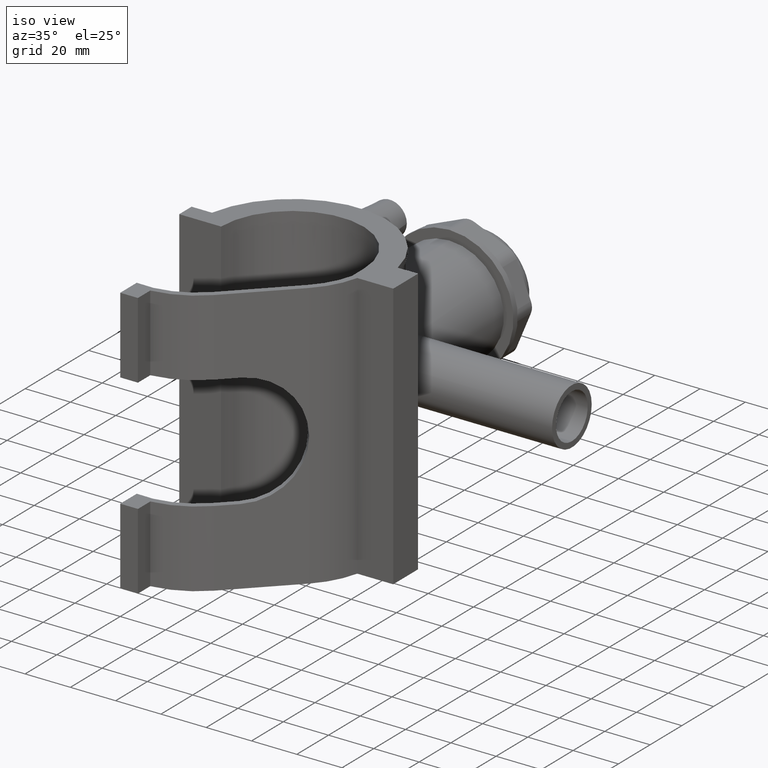
[diagram: clean part render]
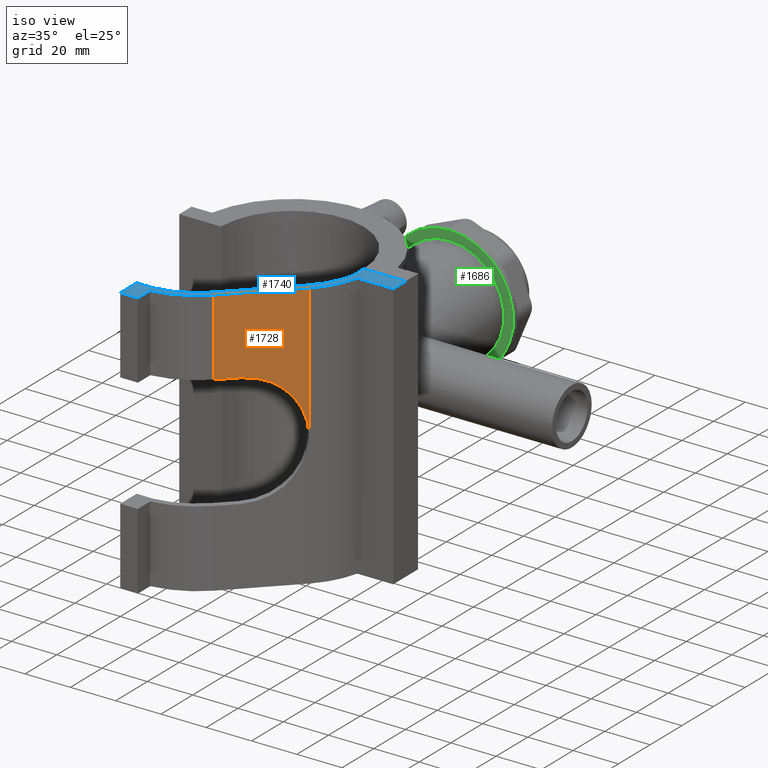
[diagram: same view with three faces highlighted in distinct colors, each labeled with its STEP entity id]
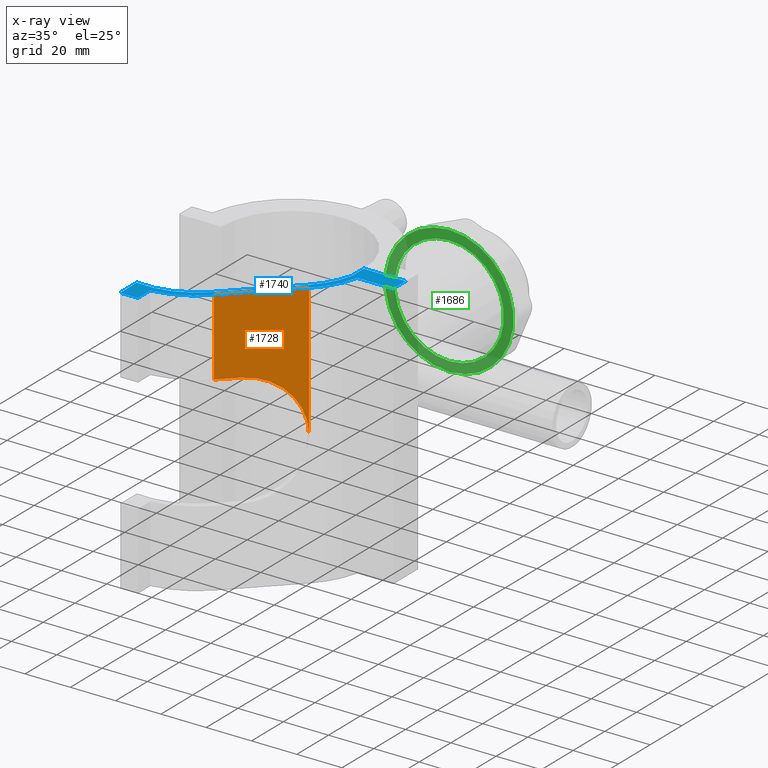
[diagram: x-ray of the same camera — body ghosted, the three highlighted faces saturated]
A machine part, iso view with three faces highlighted in distinct colors.
The next image is the same camera in x-ray (body ghosted, the three faces saturated) — at least one of them is partly hidden behind the body in this view.
Their STEP definitions:

[orange] entity #1728 — the highlighted planar face has unit normal (0.7071, -0.7071, 0).
#123=LINE('',#3400,#266);
#150=LINE('',#3474,#293);
#151=LINE('',#3476,#294);
#152=LINE('',#3477,#295);
#266=VECTOR('',#2292,9.77511653963596);
#293=VECTOR('',#2361,59.);
#294=VECTOR('',#2362,34.975116539636);
#295=VECTOR('',#2363,33.8);
#368=PLANE('',#1902);
#442=CIRCLE('',#1891,25.2);
#567=FACE_OUTER_BOUND('',#697,.T.);
#697=EDGE_LOOP('',(#1529,#1530,#1531,#1532,#1533));
#851=VERTEX_POINT('',#3397);
#852=VERTEX_POINT('',#3399);
#866=VERTEX_POINT('',#3431);
#878=VERTEX_POINT('',#3473);
#879=VERTEX_POINT('',#3475);
#1066=EDGE_CURVE('',#852,#851,#123,.T.);
#1083=EDGE_CURVE('',#851,#866,#442,.T.);
#1103=EDGE_CURVE('',#878,#866,#150,.T.);
#1104=EDGE_CURVE('',#879,#878,#151,.T.);
#1105=EDGE_CURVE('',#879,#852,#152,.T.);
#1529=ORIENTED_EDGE('',*,*,#1066,.T.);
#1530=ORIENTED_EDGE('',*,*,#1083,.T.);
#1531=ORIENTED_EDGE('',*,*,#1103,.F.);
#1532=ORIENTED_EDGE('',*,*,#1104,.F.);
#1533=ORIENTED_EDGE('',*,*,#1105,.T.);
#1728=ADVANCED_FACE('',(#567),#368,.T.);
#1891=AXIS2_PLACEMENT_3D('',#3433,#2320,#2321);
#1902=AXIS2_PLACEMENT_3D('',#3472,#2359,#2360);
#2292=DIRECTION('',(0.707106782026161,0.707106780346934,-2.20282346155785E-16));
#2320=DIRECTION('center_axis',(-0.707106780346934,0.707106782026161,0.));
#2321=DIRECTION('ref_axis',(0.707106782026161,0.707106780346934,0.));
#2359=DIRECTION('center_axis',(0.707106780346934,-0.707106782026161,0.));
#2360=DIRECTION('ref_axis',(-0.707106782026161,-0.707106780346934,0.));
#2361=DIRECTION('',(0.,0.,-1.));
#2362=DIRECTION('',(0.707106782026161,0.707106780346934,0.));
#2363=DIRECTION('',(0.,0.,-1.));
#3397=CARTESIAN_POINT('',(6.91205108281033,-42.5502329133435,25.2));
#3399=CARTESIAN_POINT('',(-1.1746235539789E-7,-49.4622840972015,25.2));
#3400=CARTESIAN_POINT('',(-19.8165852777786,-69.2788692104576,25.2));
#3431=CARTESIAN_POINT('',(24.7311419898696,-24.7311420486008,0.));
#3433=CARTESIAN_POINT('Origin',(6.91205108281032,-42.5502329133435,0.));
#3472=CARTESIAN_POINT('Origin',(24.7311419898696,-24.7311420486008,59.));
#3473=CARTESIAN_POINT('',(24.7311419898696,-24.7311420486008,59.));
#3474=CARTESIAN_POINT('',(24.7311419898696,-24.7311420486008,59.));
#3475=CARTESIAN_POINT('',(-1.1746235539789E-7,-49.4622840972015,59.));
#3476=CARTESIAN_POINT('',(-1.1746235539789E-7,-49.4622840972015,59.));
#3477=CARTESIAN_POINT('',(-1.1746235539789E-7,-49.4622840972015,59.));

[blue] entity #1740 — the highlighted planar face has unit normal (0, 0, 1).
#142=LINE('',#3457,#285);
#146=LINE('',#3465,#289);
#151=LINE('',#3476,#294);
#156=LINE('',#3485,#299);
#159=LINE('',#3497,#302);
#163=LINE('',#3504,#306);
#165=LINE('',#3511,#308);
#169=LINE('',#3523,#312);
#171=LINE('',#3526,#314);
#285=VECTOR('',#2345,10.4451981771696);
#289=VECTOR('',#2353,7.82499999999998);
#294=VECTOR('',#2362,34.975116539636);
#299=VECTOR('',#2371,7.76729281260671);
#302=VECTOR('',#2384,18.5000396825647);
#306=VECTOR('',#2390,7.52662064023158);
#308=VECTOR('',#2400,34.975116539636);
#312=VECTOR('',#2412,15.9000271825451);
#314=VECTOR('',#2416,7.82499999999999);
#376=PLANE('',#1920);
#444=CIRCLE('',#1896,32.375103956558);
#446=CIRCLE('',#1908,34.9751164565775);
#448=CIRCLE('',#1913,32.375103956558);
#450=CIRCLE('',#1917,34.9751164565775);
#579=FACE_OUTER_BOUND('',#709,.T.);
#709=EDGE_LOOP('',(#1581,#1582,#1583,#1584,#1585,#1586,#1587,#1588,#1589,
#1590,#1591,#1592,#1593));
#870=VERTEX_POINT('',#3445);
#871=VERTEX_POINT('',#3447);
#873=VERTEX_POINT('',#3455);
#875=VERTEX_POINT('',#3463);
#878=VERTEX_POINT('',#3473);
#879=VERTEX_POINT('',#3475);
#881=VERTEX_POINT('',#3483);
#884=VERTEX_POINT('',#3494);
#885=VERTEX_POINT('',#3496);
#887=VERTEX_POINT('',#3502);
#888=VERTEX_POINT('',#3507);
#890=VERTEX_POINT('',#3515);
#892=VERTEX_POINT('',#3521);
#1090=EDGE_CURVE('',#871,#870,#444,.T.);
#1095=EDGE_CURVE('',#870,#873,#142,.T.);
#1099=EDGE_CURVE('',#873,#875,#146,.T.);
#1104=EDGE_CURVE('',#879,#878,#151,.T.);
#1109=EDGE_CURVE('',#875,#881,#156,.T.);
#1111=EDGE_CURVE('',#881,#879,#446,.T.);
#1114=EDGE_CURVE('',#885,#884,#159,.T.);
#1118=EDGE_CURVE('',#884,#887,#163,.T.);
#1121=EDGE_CURVE('',#887,#888,#448,.T.);
#1122=EDGE_CURVE('',#888,#871,#165,.T.);
#1125=EDGE_CURVE('',#878,#890,#450,.T.);
#1128=EDGE_CURVE('',#890,#892,#169,.T.);
#1130=EDGE_CURVE('',#892,#885,#171,.T.);
#1581=ORIENTED_EDGE('',*,*,#1095,.T.);
#1582=ORIENTED_EDGE('',*,*,#1099,.T.);
#1583=ORIENTED_EDGE('',*,*,#1109,.T.);
#1584=ORIENTED_EDGE('',*,*,#1111,.T.);
#1585=ORIENTED_EDGE('',*,*,#1104,.T.);
#1586=ORIENTED_EDGE('',*,*,#1125,.T.);
#1587=ORIENTED_EDGE('',*,*,#1128,.T.);
#1588=ORIENTED_EDGE('',*,*,#1130,.T.);
#1589=ORIENTED_EDGE('',*,*,#1114,.T.);
#1590=ORIENTED_EDGE('',*,*,#1118,.T.);
#1591=ORIENTED_EDGE('',*,*,#1121,.T.);
#1592=ORIENTED_EDGE('',*,*,#1122,.T.);
#1593=ORIENTED_EDGE('',*,*,#1090,.T.);
#1740=ADVANCED_FACE('',(#579),#376,.T.);
#1896=AXIS2_PLACEMENT_3D('',#3448,#2335,#2336);
#1908=AXIS2_PLACEMENT_3D('',#3489,#2378,#2379);
#1913=AXIS2_PLACEMENT_3D('',#3509,#2396,#2397);
#1917=AXIS2_PLACEMENT_3D('',#3517,#2406,#2407);
#1920=AXIS2_PLACEMENT_3D('',#3527,#2417,#2418);
#2335=DIRECTION('center_axis',(0.,0.,-1.));
#2336=DIRECTION('ref_axis',(0.128765786070608,0.991675033636331,0.));
#2345=DIRECTION('',(5.67526146773244E-16,-1.,0.));
#2353=DIRECTION('',(1.,0.,0.));
#2362=DIRECTION('',(0.707106782026161,0.707106780346934,0.));
#2371=DIRECTION('',(0.,1.,0.));
#2378=DIRECTION('center_axis',(0.,0.,1.));
#2379=DIRECTION('ref_axis',(-0.119193476174969,-0.992871046630592,0.));
#2384=DIRECTION('',(-1.,-1.40652953107854E-18,0.));
#2390=DIRECTION('',(0.,-1.,0.));
#2396=DIRECTION('center_axis',(0.,0.,-1.));
#2397=DIRECTION('ref_axis',(-0.707106780346934,0.707106782026161,0.));
#2400=DIRECTION('',(-0.707106782026161,-0.707106780346934,0.));
#2406=DIRECTION('center_axis',(0.,0.,1.));
#2407=DIRECTION('ref_axis',(0.707106780346934,-0.707106782026161,0.));
#2412=DIRECTION('',(1.,6.98252280879083E-17,0.));
#2416=DIRECTION('',(0.,1.,0.));
#2417=DIRECTION('center_axis',(0.,0.,1.));
#2418=DIRECTION('ref_axis',(1.,0.,0.));
#3445=CARTESIAN_POINT('',(-28.8999478174158,-56.8367243537001,59.));
#3447=CARTESIAN_POINT('',(-1.83848658521296,-47.6237976250849,59.));
#3448=CARTESIAN_POINT('Origin',(-24.731142107332,-24.7311420486008,59.));
#3455=CARTESIAN_POINT('',(-28.8999478174158,-67.2819225308697,59.));
#3457=CARTESIAN_POINT('',(-28.8999478174158,-59.4569225308697,59.));
#3463=CARTESIAN_POINT('',(-21.0749478174158,-67.2819225308697,59.));
#3465=CARTESIAN_POINT('',(-28.8999478174158,-67.2819225308697,59.));
#3473=CARTESIAN_POINT('',(24.7311419898696,-24.7311420486008,59.));
#3475=CARTESIAN_POINT('',(-1.1746235539789E-7,-49.4622840972015,59.));
#3476=CARTESIAN_POINT('',(-1.1746235539789E-7,-49.4622840972015,59.));
#3483=CARTESIAN_POINT('',(-21.0749478174158,-59.514629718263,59.));
#3485=CARTESIAN_POINT('',(-21.0749478174158,-67.2819225308697,59.));
#3489=CARTESIAN_POINT('Origin',(-24.731142107332,-24.7311420486008,59.));
#3494=CARTESIAN_POINT('',(31.4999603174353,0.0500000000000078,59.));
#3496=CARTESIAN_POINT('',(50.,0.0500000000000078,59.));
#3497=CARTESIAN_POINT('',(50.,0.0500000000000078,59.));
#3502=CARTESIAN_POINT('',(31.4999603174353,-7.47662064023157,59.));
#3504=CARTESIAN_POINT('',(31.4999603174353,0.0500000000000078,59.));
#3507=CARTESIAN_POINT('',(22.892655522119,-22.8926555764842,59.));
#3509=CARTESIAN_POINT('Origin',(0.,0.,59.));
#3511=CARTESIAN_POINT('',(22.892655522119,-22.8926555764842,59.));
#3515=CARTESIAN_POINT('',(34.0999728174549,-7.77499999999998,59.));
#3517=CARTESIAN_POINT('Origin',(0.,0.,59.));
#3521=CARTESIAN_POINT('',(50.,-7.77499999999998,59.));
#3523=CARTESIAN_POINT('',(34.0999728174549,-7.77499999999998,59.));
#3526=CARTESIAN_POINT('',(50.,-7.77499999999998,59.));
#3527=CARTESIAN_POINT('Origin',(-24.9953706008452,-63.6718067891773,59.));

[green] entity #1686 — the highlighted planar face has unit normal (0, -1, -0).
#343=PLANE('',#1832);
#381=CIRCLE('',#1754,24.0975);
#416=CIRCLE('',#1833,28.35);
#459=FACE_BOUND('',#639,.T.);
#525=FACE_OUTER_BOUND('',#638,.T.);
#638=EDGE_LOOP('',(#1360));
#639=EDGE_LOOP('',(#1361));
#744=VERTEX_POINT('',#2679);
#811=VERTEX_POINT('',#2977);
#905=EDGE_CURVE('',#744,#744,#381,.T.);
#1012=EDGE_CURVE('',#811,#811,#416,.T.);
#1360=ORIENTED_EDGE('',*,*,#1012,.F.);
#1361=ORIENTED_EDGE('',*,*,#905,.T.);
#1686=ADVANCED_FACE('',(#525,#459),#343,.T.);
#1754=AXIS2_PLACEMENT_3D('',#2680,#1942,#1943);
#1832=AXIS2_PLACEMENT_3D('',#2976,#2162,#2163);
#1833=AXIS2_PLACEMENT_3D('',#2978,#2164,#2165);
#1942=DIRECTION('center_axis',(0.,1.,3.06161699786838E-16));
#1943=DIRECTION('ref_axis',(1.,0.,0.));
#2162=DIRECTION('center_axis',(0.,-1.,-3.06161699786838E-16));
#2163=DIRECTION('ref_axis',(0.,0.,-1.));
#2164=DIRECTION('center_axis',(0.,1.,3.06161699786838E-16));
#2165=DIRECTION('ref_axis',(1.,0.,0.));
#2679=CARTESIAN_POINT('',(0.,99.,24.0975));
#2680=CARTESIAN_POINT('Origin',(0.,99.,2.06659147356116E-14));
#2976=CARTESIAN_POINT('Origin',(0.,99.,28.35));
#2977=CARTESIAN_POINT('',(0.,99.,28.35));
#2978=CARTESIAN_POINT('Origin',(0.,99.,2.06659147356116E-14));